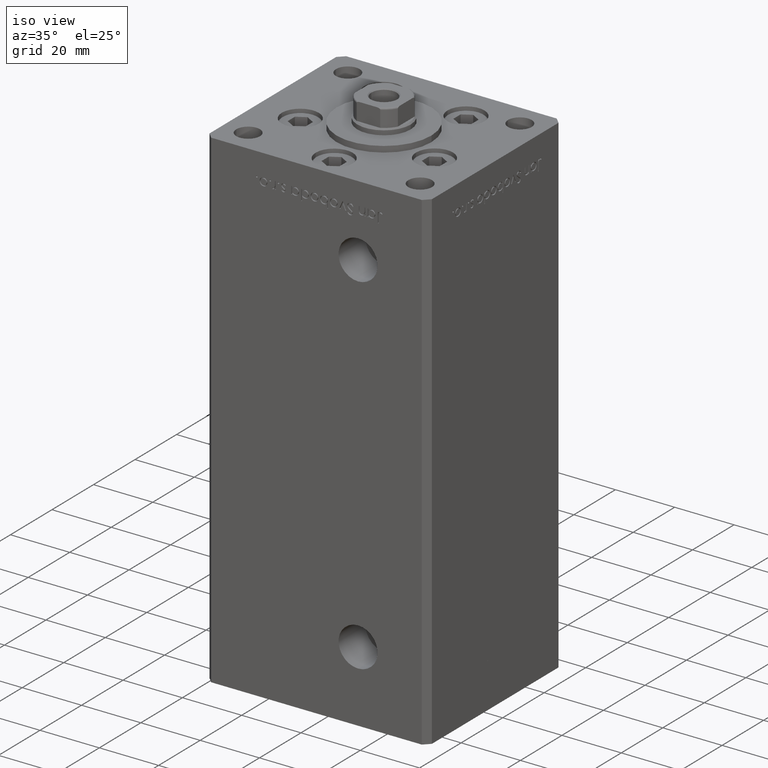
[diagram: clean part render]
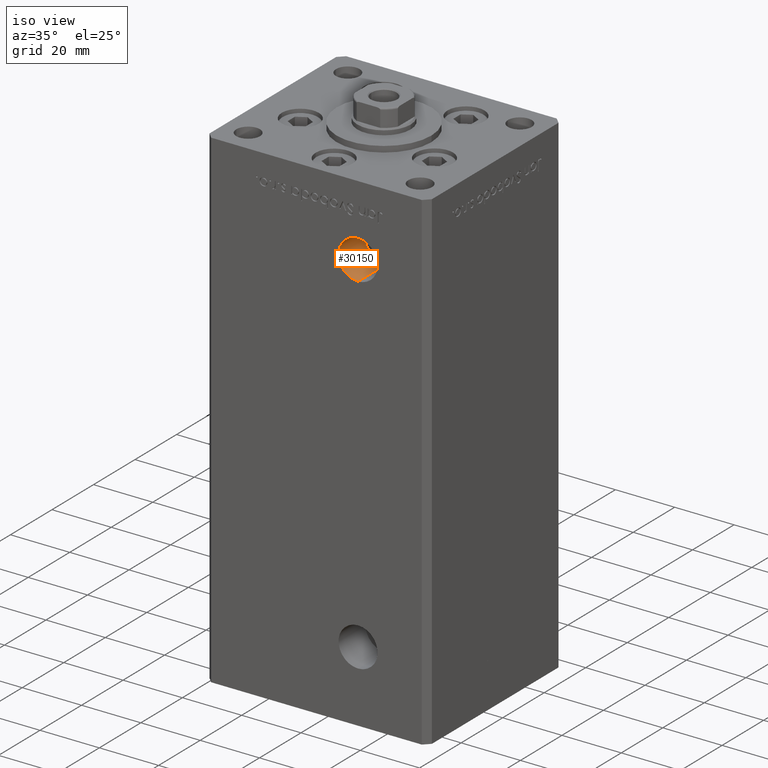
[diagram: same view with one face highlighted and labeled with its STEP entity id]
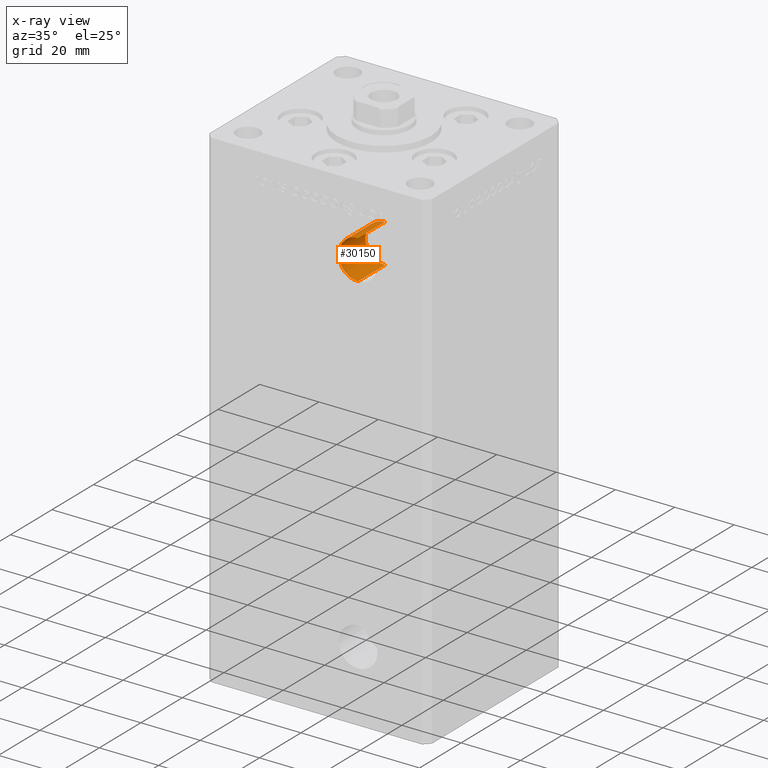
[diagram: x-ray of the same camera — body ghosted, the highlighted face saturated]
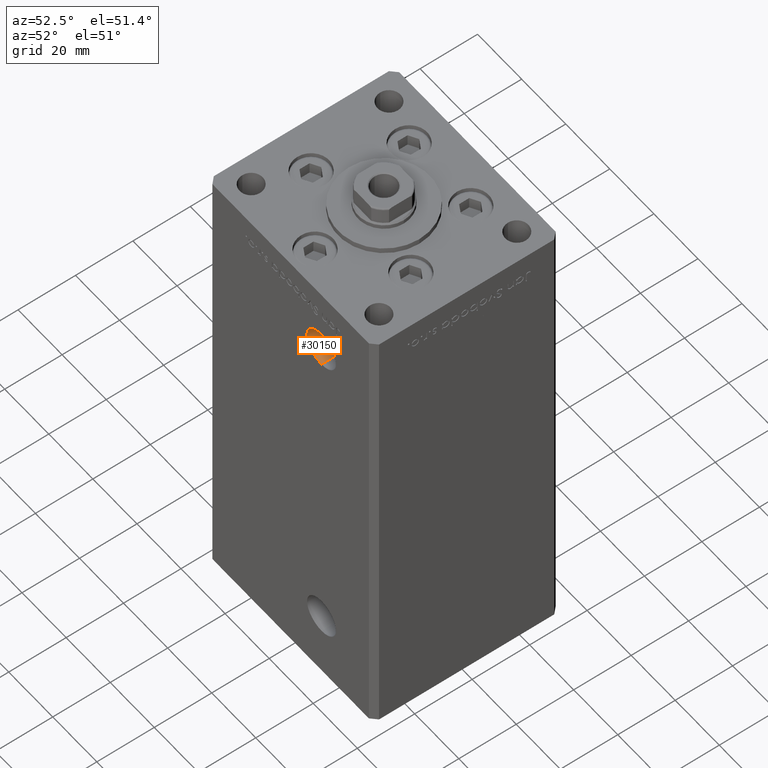
[diagram: same view with one face highlighted and labeled with its STEP entity id]
A machine part, iso view. The second image highlights one B-rep face of the part: STEP entity #30150.
The next image is the same camera in x-ray: the body ghosted, the highlighted face saturated — about 0% of this face is hidden behind the body in this view.
A second angle (auxiliary view) of the same face is appended — the face is thin or edge-on in the first view.
In plain terms, the highlighted cylindrical surface (edge-blend (fillet) strip) has radius 6.58 mm, axis along (-0, -1, -0).
Its self-contained STEP definition (entity closure, byte-faithful):
#631 = AXIS2_PLACEMENT_3D ( 'NONE', #43696, #15729, #51637 ) ;
#3551 = VECTOR ( 'NONE', #43730, 1000.000000000000000 ) ;
#3688 = EDGE_CURVE ( 'NONE', #10682, #22086, #50056, .T. ) ;
#5285 = AXIS2_PLACEMENT_3D ( 'NONE', #27456, #19800, #40374 ) ;
#5447 = DIRECTION ( 'NONE',  ( -0.000000000000000000, -1.000000000000000000, -0.000000000000000000 ) ) ;
#5709 = CARTESIAN_POINT ( 'NONE',  ( 13.99999999999999112, -19.50000000000000355, 133.5800000000000125 ) ) ;
#5958 = EDGE_CURVE ( 'NONE', #38418, #10682, #33950, .T. ) ;
#8876 = EDGE_CURVE ( 'NONE', #38418, #12859, #39775, .T. ) ;
#9303 = CARTESIAN_POINT ( 'NONE',  ( 13.99999999999999112, -32.50000000000000000, 120.4200000000000017 ) ) ;
#10682 = VERTEX_POINT ( 'NONE', #5709 ) ;
#12098 = CARTESIAN_POINT ( 'NONE',  ( 13.99999999999999112, -32.50000000000000000, 133.5800000000000125 ) ) ;
#12859 = VERTEX_POINT ( 'NONE', #9303 ) ;
#15729 = DIRECTION ( 'NONE',  ( -0.000000000000000000, -1.000000000000000000, -0.000000000000000000 ) ) ;
#19721 = ORIENTED_EDGE ( 'NONE', *, *, #3688, .T. ) ;
#19800 = DIRECTION ( 'NONE',  ( -0.000000000000000000, 1.000000000000000000, -0.000000000000000000 ) ) ;
#19995 = CIRCLE ( 'NONE', #44443, 6.580000000000002736 ) ;
#21617 = ORIENTED_EDGE ( 'NONE', *, *, #40791, .F. ) ;
#22058 = VECTOR ( 'NONE', #5447, 1000.000000000000000 ) ;
#22073 = CARTESIAN_POINT ( 'NONE',  ( 13.99999999999999112, -19.50000000000000355, 133.5800000000000125 ) ) ;
#22086 = VERTEX_POINT ( 'NONE', #12098 ) ;
#22555 = EDGE_LOOP ( 'NONE', ( #51401, #19721, #21617, #37736 ) ) ;
#23389 = CYLINDRICAL_SURFACE ( 'NONE', #631, 6.580000000000002736 ) ;
#27456 = CARTESIAN_POINT ( 'NONE',  ( 13.99999999999999112, -19.50000000000000355, 127.0000000000000000 ) ) ;
#30150 = ADVANCED_FACE ( 'NONE', ( #43187 ), #23389, .F. ) ;
#33950 = CIRCLE ( 'NONE', #5285, 6.580000000000002736 ) ;
#35048 = DIRECTION ( 'NONE',  ( 0.000000000000000000, 0.000000000000000000, -1.000000000000000000 ) ) ;
#37736 = ORIENTED_EDGE ( 'NONE', *, *, #8876, .F. ) ;
#38418 = VERTEX_POINT ( 'NONE', #43313 ) ;
#39003 = DIRECTION ( 'NONE',  ( -0.000000000000000000, 1.000000000000000000, -0.000000000000000000 ) ) ;
#39775 = LINE ( 'NONE', #47944, #3551 ) ;
#40374 = DIRECTION ( 'NONE',  ( 0.000000000000000000, 0.000000000000000000, -1.000000000000000000 ) ) ;
#40791 = EDGE_CURVE ( 'NONE', #12859, #22086, #19995, .T. ) ;
#43187 = FACE_OUTER_BOUND ( 'NONE', #22555, .T. ) ;
#43313 = CARTESIAN_POINT ( 'NONE',  ( 13.99999999999999112, -19.50000000000000355, 120.4200000000000017 ) ) ;
#43696 = CARTESIAN_POINT ( 'NONE',  ( 13.99999999999999112, -19.50000000000000355, 127.0000000000000000 ) ) ;
#43730 = DIRECTION ( 'NONE',  ( -0.000000000000000000, -1.000000000000000000, -0.000000000000000000 ) ) ;
#44443 = AXIS2_PLACEMENT_3D ( 'NONE', #47168, #39003, #35048 ) ;
#47168 = CARTESIAN_POINT ( 'NONE',  ( 13.99999999999999112, -32.50000000000000000, 127.0000000000000000 ) ) ;
#47944 = CARTESIAN_POINT ( 'NONE',  ( 13.99999999999999112, -19.50000000000000355, 120.4200000000000017 ) ) ;
#50056 = LINE ( 'NONE', #22073, #22058 ) ;
#51401 = ORIENTED_EDGE ( 'NONE', *, *, #5958, .T. ) ;
#51637 = DIRECTION ( 'NONE',  ( 0.000000000000000000, 0.000000000000000000, -1.000000000000000000 ) ) ;